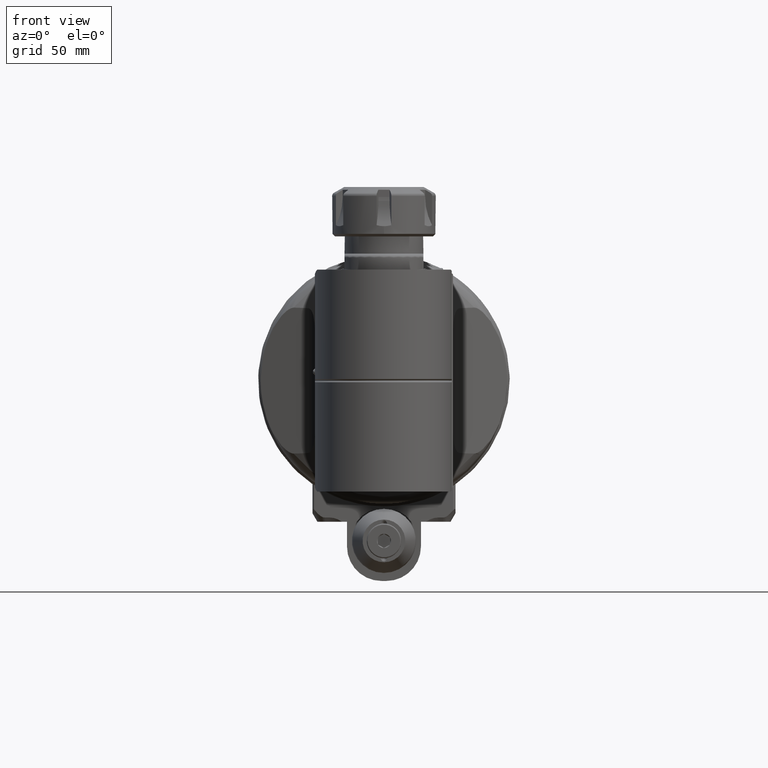
[diagram: clean part render]
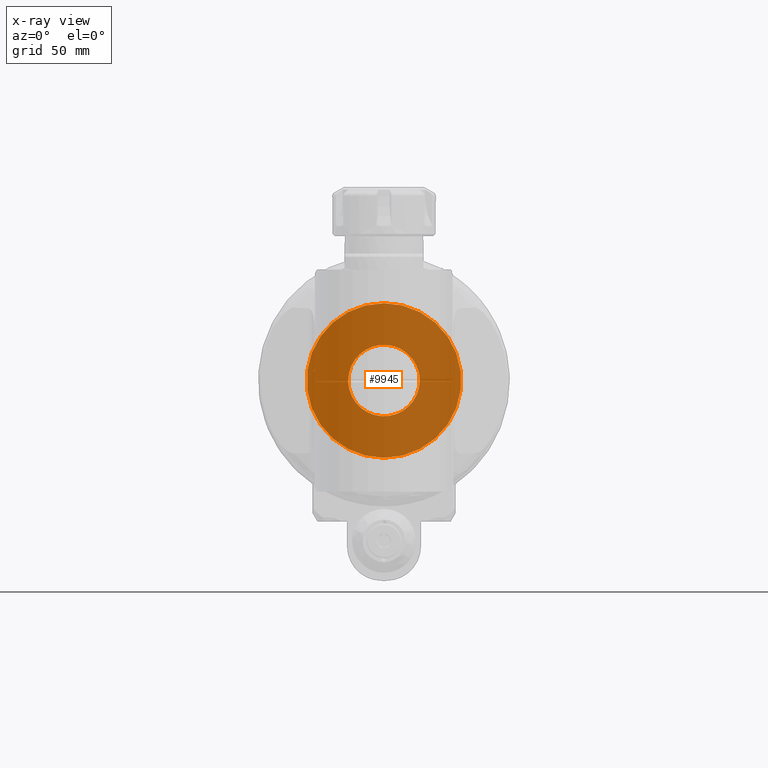
[diagram: x-ray — body ghosted, one internal face saturated and labeled with its STEP entity id]
A machine part, front view, then the same camera in x-ray: the body is ghosted and one INTERNAL B-rep face — a face not visible from any outside direction — is saturated and labeled: STEP entity #9945.
In plain terms, the highlighted planar face has unit normal (-0, 1, -0).
Its self-contained STEP definition (entity closure, byte-faithful):
#294=FACE_BOUND('',#2159,.T.);
#579=B_SPLINE_CURVE_WITH_KNOTS('',3,(#16668,#16669,#16670,#16671,#16672,
#16673,#16674,#16675,#16676,#16677,#16678,#16679,#16680,#16681,#16682,#16683,
#16684,#16685,#16686,#16687),.UNSPECIFIED.,.F.,.F.,(4,1,1,1,1,1,1,1,1,1,
1,1,1,1,1,1,1,4),(0.,0.05882352941176,0.1176470588235,0.1764705882353,0.2352941176471,
0.2941176470588,0.3529411764706,0.4117647058824,0.4705882352941,0.5294117647059,
0.5882352941176,0.6470588235294,0.7058823529412,0.7647058823529,0.8235294117647,
0.8823529411765,0.9411764705882,1.),.UNSPECIFIED.);
#580=B_SPLINE_CURVE_WITH_KNOTS('',3,(#16688,#16689,#16690,#16691,#16692,
#16693,#16694,#16695,#16696,#16697,#16698,#16699,#16700,#16701,#16702,#16703,
#16704,#16705,#16706,#16707),.UNSPECIFIED.,.F.,.F.,(4,1,1,1,1,1,1,1,1,1,
1,1,1,1,1,1,1,4),(0.,0.05882352941176,0.1176470588235,0.1764705882353,0.2352941176471,
0.2941176470588,0.3529411764706,0.4117647058824,0.4705882352941,0.5294117647059,
0.5882352941176,0.6470588235294,0.7058823529412,0.7647058823529,0.8235294117647,
0.8823529411765,0.9411764705882,1.),.UNSPECIFIED.);
#1029=CIRCLE('',#10991,31.35);
#1542=FACE_OUTER_BOUND('',#2158,.T.);
#2158=EDGE_LOOP('',(#7521));
#2159=EDGE_LOOP('',(#7522,#7523));
#4200=VERTEX_POINT('',#16664);
#4201=VERTEX_POINT('',#16666);
#4202=VERTEX_POINT('',#16667);
#5390=EDGE_CURVE('',#4200,#4200,#1029,.T.);
#5391=EDGE_CURVE('',#4201,#4202,#579,.T.);
#5392=EDGE_CURVE('',#4202,#4201,#580,.T.);
#7521=ORIENTED_EDGE('',*,*,#5390,.T.);
#7522=ORIENTED_EDGE('',*,*,#5391,.T.);
#7523=ORIENTED_EDGE('',*,*,#5392,.T.);
#9256=PLANE('',#10990);
#9945=ADVANCED_FACE('',(#1542,#294),#9256,.F.);
#10990=AXIS2_PLACEMENT_3D('',#16663,#12846,#12847);
#10991=AXIS2_PLACEMENT_3D('',#16665,#12848,#12849);
#12846=DIRECTION('center_axis',(0.,0.,1.));
#12847=DIRECTION('ref_axis',(1.,0.,0.));
#12848=DIRECTION('center_axis',(0.,0.,-1.));
#12849=DIRECTION('ref_axis',(-1.,0.,0.));
#16663=CARTESIAN_POINT('Origin',(0.,0.,-0.005));
#16664=CARTESIAN_POINT('',(-31.35,-1.347527155718E-14,-0.005000000000013));
#16665=CARTESIAN_POINT('Origin',(0.,-1.347111479062E-14,-0.005000000000013));
#16666=CARTESIAN_POINT('',(0.,14.5,-0.005));
#16667=CARTESIAN_POINT('',(0.,-14.5,-0.005));
#16668=CARTESIAN_POINT('Ctrl Pts',(0.,14.5,-0.005));
#16669=CARTESIAN_POINT('Ctrl Pts',(-0.9016584831045,14.49888450858,-0.005));
#16670=CARTESIAN_POINT('Ctrl Pts',(-2.671468599625,14.33554001612,-0.005));
#16671=CARTESIAN_POINT('Ctrl Pts',(-5.268829729588,13.59869267255,-0.005));
#16672=CARTESIAN_POINT('Ctrl Pts',(-7.679337301994,12.39548495214,-0.005));
#16673=CARTESIAN_POINT('Ctrl Pts',(-9.806914598114,10.79223327368,-0.005));
#16674=CARTESIAN_POINT('Ctrl Pts',(-11.63683328154,8.790915729378,-0.005));
#16675=CARTESIAN_POINT('Ctrl Pts',(-13.0569736024,6.494715758095,-0.005));
#16676=CARTESIAN_POINT('Ctrl Pts',(-14.02996751605,3.978086094757,-0.005));
#16677=CARTESIAN_POINT('Ctrl Pts',(-14.52162747338,1.332022544295,-0.005));
#16678=CARTESIAN_POINT('Ctrl Pts',(-14.5192889571,-1.355010221333,-0.005));
#16679=CARTESIAN_POINT('Ctrl Pts',(-14.02494121093,-3.993292120235,-0.005));
#16680=CARTESIAN_POINT('Ctrl Pts',(-13.05524697636,-6.495965555902,-0.005));
#16681=CARTESIAN_POINT('Ctrl Pts',(-11.64458652108,-8.779112300569,-0.005));
#16682=CARTESIAN_POINT('Ctrl Pts',(-9.825801018785,-10.77438007515,-0.005));
#16683=CARTESIAN_POINT('Ctrl Pts',(-7.704440983411,-12.3799103196,-0.005));
#16684=CARTESIAN_POINT('Ctrl Pts',(-5.293415155813,-13.58956697316,-0.005));
#16685=CARTESIAN_POINT('Ctrl Pts',(-2.687238459729,-14.33354425829,-0.005));
#16686=CARTESIAN_POINT('Ctrl Pts',(-0.9076552997688,-14.49853883461,-0.005));
#16687=CARTESIAN_POINT('Ctrl Pts',(0.,-14.5,-0.005));
#16688=CARTESIAN_POINT('Ctrl Pts',(0.,-14.5,-0.005));
#16689=CARTESIAN_POINT('Ctrl Pts',(0.9016584831045,-14.49888450858,-0.005));
#16690=CARTESIAN_POINT('Ctrl Pts',(2.671468599625,-14.33554001612,-0.005));
#16691=CARTESIAN_POINT('Ctrl Pts',(5.268829729588,-13.59869267255,-0.005));
#16692=CARTESIAN_POINT('Ctrl Pts',(7.679337301994,-12.39548495214,-0.005));
#16693=CARTESIAN_POINT('Ctrl Pts',(9.806914598114,-10.79223327368,-0.005));
#16694=CARTESIAN_POINT('Ctrl Pts',(11.63683328154,-8.790915729378,-0.005));
#16695=CARTESIAN_POINT('Ctrl Pts',(13.0569736024,-6.494715758095,-0.005));
#16696=CARTESIAN_POINT('Ctrl Pts',(14.02996751605,-3.978086094757,-0.005));
#16697=CARTESIAN_POINT('Ctrl Pts',(14.52162747338,-1.332022544295,-0.005));
#16698=CARTESIAN_POINT('Ctrl Pts',(14.5192889571,1.355010221333,-0.005));
#16699=CARTESIAN_POINT('Ctrl Pts',(14.02494121093,3.993292120235,-0.005));
#16700=CARTESIAN_POINT('Ctrl Pts',(13.05524697636,6.495965555902,-0.005));
#16701=CARTESIAN_POINT('Ctrl Pts',(11.64458652108,8.779112300569,-0.005));
#16702=CARTESIAN_POINT('Ctrl Pts',(9.825801018785,10.77438007515,-0.005));
#16703=CARTESIAN_POINT('Ctrl Pts',(7.704440983411,12.3799103196,-0.005));
#16704=CARTESIAN_POINT('Ctrl Pts',(5.293415155813,13.58956697316,-0.005));
#16705=CARTESIAN_POINT('Ctrl Pts',(2.687238459729,14.33354425829,-0.005));
#16706=CARTESIAN_POINT('Ctrl Pts',(0.9076552997688,14.49853883461,-0.005));
#16707=CARTESIAN_POINT('Ctrl Pts',(0.,14.5,-0.005));